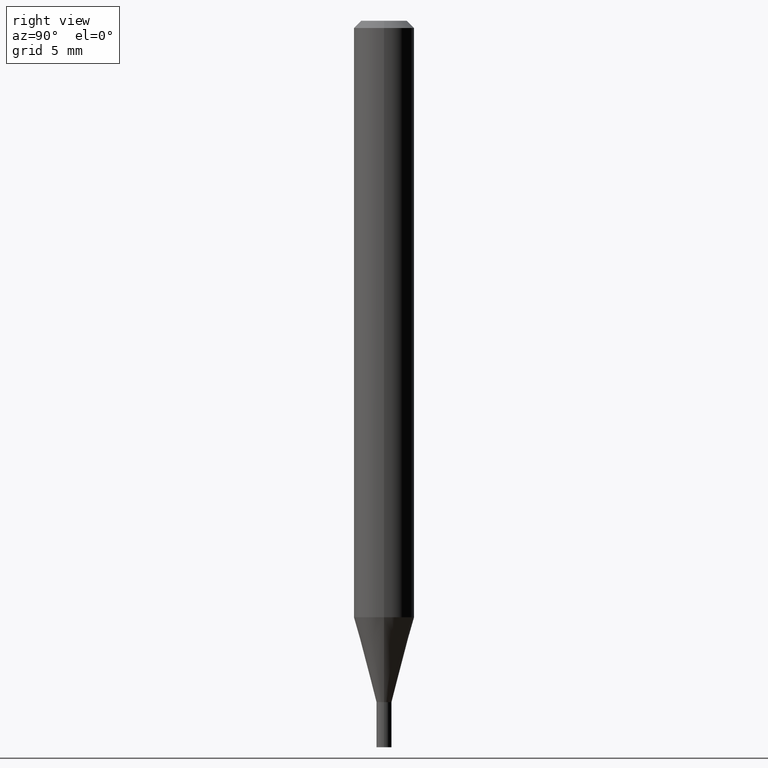
[diagram: clean part render]
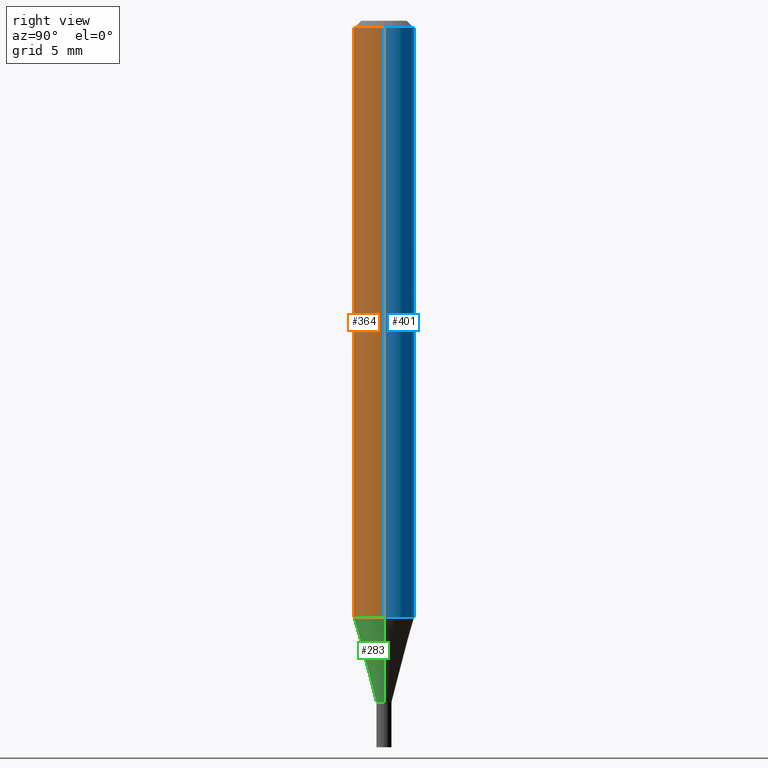
[diagram: same view with three faces highlighted in distinct colors, each labeled with its STEP entity id]
A machine part, right view with three faces highlighted in distinct colors.
Their STEP definitions:

[orange] entity #364 — the highlighted cylindrical surface (edge-blend (fillet) strip) has radius 1.5875 mm, axis along (-0, 0, 1).
#3 = EDGE_CURVE ( 'NONE', #372, #163, #68, .T. ) ;
#25 = EDGE_LOOP ( 'NONE', ( #37, #409, #294, #257 ) ) ;
#35 = CARTESIAN_POINT ( 'NONE',  ( 0.06250000000000000000, -4.364351673553916694E-16, 3.047610484872459871E-30 ) ) ;
#37 = ORIENTED_EDGE ( 'NONE', *, *, #319, .F. ) ;
#68 = CIRCLE ( 'NONE', #191, 0.06250000000000000000 ) ;
#71 = LINE ( 'NONE', #390, #358 ) ;
#107 = CARTESIAN_POINT ( 'NONE',  ( -0.06250000000000000000, -1.732139956936747188E-15, -0.01499999999999999944 ) ) ;
#128 = AXIS2_PLACEMENT_3D ( 'NONE', #166, #414, #232 ) ;
#149 = CARTESIAN_POINT ( 'NONE',  ( 0.06250000000000001388, -4.736521280846363803E-15, -1.231593612044264097 ) ) ;
#161 = CARTESIAN_POINT ( 'NONE',  ( 3.668203209277705088E-31, -5.237222008264718399E-17, -0.01499999999999999944 ) ) ;
#163 = VERTEX_POINT ( 'NONE', #412 ) ;
#166 = CARTESIAN_POINT ( 'NONE',  ( 0.000000000000000000, 0.000000000000000000, 0.000000000000000000 ) ) ;
#174 = DIRECTION ( 'NONE',  ( -2.445468806185136597E-29, 3.491481338843145583E-15, 1.000000000000000000 ) ) ;
#175 = LINE ( 'NONE', #35, #215 ) ;
#191 = AXIS2_PLACEMENT_3D ( 'NONE', #161, #174, #202 ) ;
#202 = DIRECTION ( 'NONE',  ( 1.000000000000000000, -6.982962677686266711E-15, 0.000000000000000000 ) ) ;
#215 = VECTOR ( 'NONE', #237, 39.37007874015748143 ) ;
#217 = EDGE_CURVE ( 'NONE', #452, #292, #386, .T. ) ;
#232 = DIRECTION ( 'NONE',  ( 1.000000000000000000, -6.982962677686266711E-15, 4.876176775795935793E-29 ) ) ;
#237 = DIRECTION ( 'NONE',  ( -2.445468806185136877E-29, 3.491481338843145188E-15, 1.000000000000000000 ) ) ;
#252 = DIRECTION ( 'NONE',  ( -2.445468806185136597E-29, 3.491481338843145583E-15, 1.000000000000000000 ) ) ;
#257 = ORIENTED_EDGE ( 'NONE', *, *, #3, .F. ) ;
#270 = CYLINDRICAL_SURFACE ( 'NONE', #128, 0.06250000000000000000 ) ;
#292 = VERTEX_POINT ( 'NONE', #149 ) ;
#294 = ORIENTED_EDGE ( 'NONE', *, *, #437, .T. ) ;
#314 = AXIS2_PLACEMENT_3D ( 'NONE', #385, #252, #330 ) ;
#319 = EDGE_CURVE ( 'NONE', #452, #372, #71, .T. ) ;
#330 = DIRECTION ( 'NONE',  ( 1.000000000000000000, -6.982962677686262766E-15, 0.000000000000000000 ) ) ;
#358 = VECTOR ( 'NONE', #394, 39.37007874015748143 ) ;
#364 = ADVANCED_FACE ( 'NONE', ( #451 ), #270, .T. ) ;
#372 = VERTEX_POINT ( 'NONE', #107 ) ;
#385 = CARTESIAN_POINT ( 'NONE',  ( 3.011823760151126772E-29, -4.300086113490972134E-15, -1.231593612044264097 ) ) ;
#386 = CIRCLE ( 'NONE', #314, 0.06250000000000000000 ) ;
#390 = CARTESIAN_POINT ( 'NONE',  ( -0.06250000000000000000, 4.440892098500626162E-16, -3.074334431409316114E-30 ) ) ;
#394 = DIRECTION ( 'NONE',  ( -2.445468806185136877E-29, 3.491481338843145188E-15, 1.000000000000000000 ) ) ;
#409 = ORIENTED_EDGE ( 'NONE', *, *, #217, .T. ) ;
#412 = CARTESIAN_POINT ( 'NONE',  ( 0.06250000000000000000, -4.888073874380388472E-16, -0.01499999999999999944 ) ) ;
#414 = DIRECTION ( 'NONE',  ( -2.445468806185136597E-29, 3.491481338843145583E-15, 1.000000000000000000 ) ) ;
#430 = CARTESIAN_POINT ( 'NONE',  ( -0.06250000000000001388, -3.855996903640909518E-15, -1.231593612044264097 ) ) ;
#437 = EDGE_CURVE ( 'NONE', #292, #163, #175, .T. ) ;
#451 = FACE_OUTER_BOUND ( 'NONE', #25, .T. ) ;
#452 = VERTEX_POINT ( 'NONE', #430 ) ;

[blue] entity #401 — the highlighted cylindrical surface (edge-blend (fillet) strip) has radius 1.5875 mm, axis along (-0, 0, 1).
#12 = DIRECTION ( 'NONE',  ( -2.445468806185136597E-29, 3.491481338843145583E-15, 1.000000000000000000 ) ) ;
#14 = DIRECTION ( 'NONE',  ( 1.000000000000000000, -6.982962677686266711E-15, 0.000000000000000000 ) ) ;
#35 = CARTESIAN_POINT ( 'NONE',  ( 0.06250000000000000000, -4.364351673553916694E-16, 3.047610484872459871E-30 ) ) ;
#40 = AXIS2_PLACEMENT_3D ( 'NONE', #188, #12, #145 ) ;
#55 = DIRECTION ( 'NONE',  ( -2.445468806185136597E-29, 3.491481338843145583E-15, 1.000000000000000000 ) ) ;
#71 = LINE ( 'NONE', #390, #358 ) ;
#107 = CARTESIAN_POINT ( 'NONE',  ( -0.06250000000000000000, -1.732139956936747188E-15, -0.01499999999999999944 ) ) ;
#108 = ORIENTED_EDGE ( 'NONE', *, *, #319, .T. ) ;
#113 = CIRCLE ( 'NONE', #327, 0.06250000000000000000 ) ;
#145 = DIRECTION ( 'NONE',  ( 1.000000000000000000, -6.982962677686262766E-15, 0.000000000000000000 ) ) ;
#149 = CARTESIAN_POINT ( 'NONE',  ( 0.06250000000000001388, -4.736521280846363803E-15, -1.231593612044264097 ) ) ;
#163 = VERTEX_POINT ( 'NONE', #412 ) ;
#175 = LINE ( 'NONE', #35, #215 ) ;
#188 = CARTESIAN_POINT ( 'NONE',  ( 3.011823760151126772E-29, -4.300086113490972134E-15, -1.231593612044264097 ) ) ;
#215 = VECTOR ( 'NONE', #237, 39.37007874015748143 ) ;
#228 = EDGE_CURVE ( 'NONE', #163, #372, #113, .T. ) ;
#230 = EDGE_LOOP ( 'NONE', ( #383, #108, #325, #405 ) ) ;
#237 = DIRECTION ( 'NONE',  ( -2.445468806185136877E-29, 3.491481338843145188E-15, 1.000000000000000000 ) ) ;
#263 = AXIS2_PLACEMENT_3D ( 'NONE', #290, #55, #456 ) ;
#290 = CARTESIAN_POINT ( 'NONE',  ( 0.000000000000000000, 0.000000000000000000, 0.000000000000000000 ) ) ;
#292 = VERTEX_POINT ( 'NONE', #149 ) ;
#319 = EDGE_CURVE ( 'NONE', #452, #372, #71, .T. ) ;
#322 = CIRCLE ( 'NONE', #40, 0.06250000000000000000 ) ;
#325 = ORIENTED_EDGE ( 'NONE', *, *, #228, .F. ) ;
#327 = AXIS2_PLACEMENT_3D ( 'NONE', #440, #402, #14 ) ;
#358 = VECTOR ( 'NONE', #394, 39.37007874015748143 ) ;
#372 = VERTEX_POINT ( 'NONE', #107 ) ;
#383 = ORIENTED_EDGE ( 'NONE', *, *, #388, .T. ) ;
#388 = EDGE_CURVE ( 'NONE', #292, #452, #322, .T. ) ;
#390 = CARTESIAN_POINT ( 'NONE',  ( -0.06250000000000000000, 4.440892098500626162E-16, -3.074334431409316114E-30 ) ) ;
#394 = DIRECTION ( 'NONE',  ( -2.445468806185136877E-29, 3.491481338843145188E-15, 1.000000000000000000 ) ) ;
#398 = CYLINDRICAL_SURFACE ( 'NONE', #263, 0.06250000000000000000 ) ;
#401 = ADVANCED_FACE ( 'NONE', ( #403 ), #398, .T. ) ;
#402 = DIRECTION ( 'NONE',  ( -2.445468806185136597E-29, 3.491481338843145583E-15, 1.000000000000000000 ) ) ;
#403 = FACE_OUTER_BOUND ( 'NONE', #230, .T. ) ;
#405 = ORIENTED_EDGE ( 'NONE', *, *, #437, .F. ) ;
#412 = CARTESIAN_POINT ( 'NONE',  ( 0.06250000000000000000, -4.888073874380388472E-16, -0.01499999999999999944 ) ) ;
#430 = CARTESIAN_POINT ( 'NONE',  ( -0.06250000000000001388, -3.855996903640909518E-15, -1.231593612044264097 ) ) ;
#437 = EDGE_CURVE ( 'NONE', #292, #163, #175, .T. ) ;
#440 = CARTESIAN_POINT ( 'NONE',  ( 3.668203209277705088E-31, -5.237222008264718399E-17, -0.01499999999999999944 ) ) ;
#452 = VERTEX_POINT ( 'NONE', #430 ) ;
#456 = DIRECTION ( 'NONE',  ( 1.000000000000000000, -6.982962677686266711E-15, 4.876176775795935793E-29 ) ) ;

[green] entity #283 — the highlighted conical surface has half-angle 15 deg.
#5 = LINE ( 'NONE', #111, #224 ) ;
#18 = CARTESIAN_POINT ( 'NONE',  ( -0.01550000000000019765, -4.329188511675198905E-15, -1.407000000000000028 ) ) ;
#42 = CIRCLE ( 'NONE', #255, 0.01550000000000019765 ) ;
#48 = ORIENTED_EDGE ( 'NONE', *, *, #285, .F. ) ;
#58 = FACE_OUTER_BOUND ( 'NONE', #121, .T. ) ;
#111 = CARTESIAN_POINT ( 'NONE',  ( -0.01550000000000019765, -4.802380119709489081E-15, -1.407000000000000028 ) ) ;
#121 = EDGE_LOOP ( 'NONE', ( #48, #239, #282, #419 ) ) ;
#134 = DIRECTION ( 'NONE',  ( 0.2588190451025213501, 1.565188264969621968E-15, 0.9659258262890682012 ) ) ;
#138 = CARTESIAN_POINT ( 'NONE',  ( 3.440774610302487541E-29, -4.912514243752305891E-15, -1.407000000000000028 ) ) ;
#141 = DIRECTION ( 'NONE',  ( 1.000000000000000000, -6.982962677686275388E-15, 0.000000000000000000 ) ) ;
#149 = CARTESIAN_POINT ( 'NONE',  ( 0.06250000000000001388, -4.736521280846363803E-15, -1.231593612044264097 ) ) ;
#160 = CARTESIAN_POINT ( 'NONE',  ( 0.01550000000000019765, -5.020750165256443846E-15, -1.407000000000000028 ) ) ;
#167 = VERTEX_POINT ( 'NONE', #160 ) ;
#207 = EDGE_CURVE ( 'NONE', #235, #167, #42, .T. ) ;
#214 = DIRECTION ( 'NONE',  ( 1.000000000000000000, -6.982962677686275388E-15, 0.000000000000000000 ) ) ;
#217 = EDGE_CURVE ( 'NONE', #452, #292, #386, .T. ) ;
#224 = VECTOR ( 'NONE', #435, 39.37007874015747433 ) ;
#235 = VERTEX_POINT ( 'NONE', #18 ) ;
#239 = ORIENTED_EDGE ( 'NONE', *, *, #207, .T. ) ;
#249 = DIRECTION ( 'NONE',  ( -2.445468806185136597E-29, 3.491481338843145583E-15, 1.000000000000000000 ) ) ;
#252 = DIRECTION ( 'NONE',  ( -2.445468806185136597E-29, 3.491481338843145583E-15, 1.000000000000000000 ) ) ;
#255 = AXIS2_PLACEMENT_3D ( 'NONE', #138, #249, #141 ) ;
#282 = ORIENTED_EDGE ( 'NONE', *, *, #404, .T. ) ;
#283 = ADVANCED_FACE ( 'NONE', ( #58 ), #288, .T. ) ;
#285 = EDGE_CURVE ( 'NONE', #235, #452, #5, .T. ) ;
#288 = CONICAL_SURFACE ( 'NONE', #296, 0.01550000000000019765, 0.2617993877991500740 ) ;
#292 = VERTEX_POINT ( 'NONE', #149 ) ;
#296 = AXIS2_PLACEMENT_3D ( 'NONE', #376, #308, #214 ) ;
#308 = DIRECTION ( 'NONE',  ( -2.445468806185136597E-29, 3.491481338843145583E-15, 1.000000000000000000 ) ) ;
#314 = AXIS2_PLACEMENT_3D ( 'NONE', #385, #252, #330 ) ;
#330 = DIRECTION ( 'NONE',  ( 1.000000000000000000, -6.982962677686262766E-15, 0.000000000000000000 ) ) ;
#376 = CARTESIAN_POINT ( 'NONE',  ( 3.440774610302487541E-29, -4.912514243752305891E-15, -1.407000000000000028 ) ) ;
#378 = LINE ( 'NONE', #459, #407 ) ;
#385 = CARTESIAN_POINT ( 'NONE',  ( 3.011823760151126772E-29, -4.300086113490972134E-15, -1.231593612044264097 ) ) ;
#386 = CIRCLE ( 'NONE', #314, 0.06250000000000000000 ) ;
#404 = EDGE_CURVE ( 'NONE', #167, #292, #378, .T. ) ;
#407 = VECTOR ( 'NONE', #134, 39.37007874015747433 ) ;
#419 = ORIENTED_EDGE ( 'NONE', *, *, #217, .F. ) ;
#430 = CARTESIAN_POINT ( 'NONE',  ( -0.06250000000000001388, -3.855996903640909518E-15, -1.231593612044264097 ) ) ;
#435 = DIRECTION ( 'NONE',  ( -0.2588190451025213501, 5.211531920934551042E-15, 0.9659258262890682012 ) ) ;
#452 = VERTEX_POINT ( 'NONE', #430 ) ;
#459 = CARTESIAN_POINT ( 'NONE',  ( 0.01550000000000019765, -5.020750165256443846E-15, -1.407000000000000028 ) ) ;